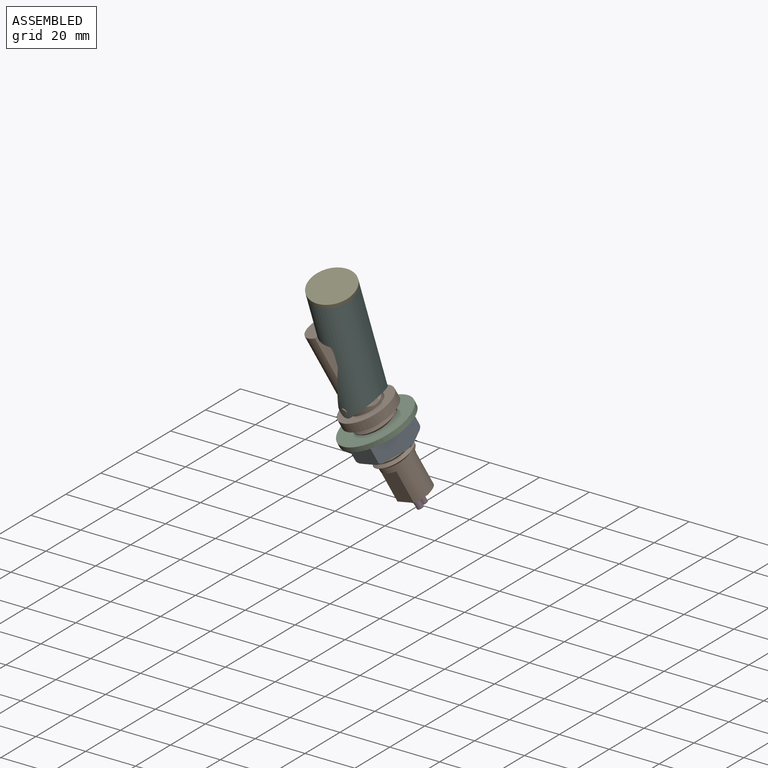
[diagram: assembled view]
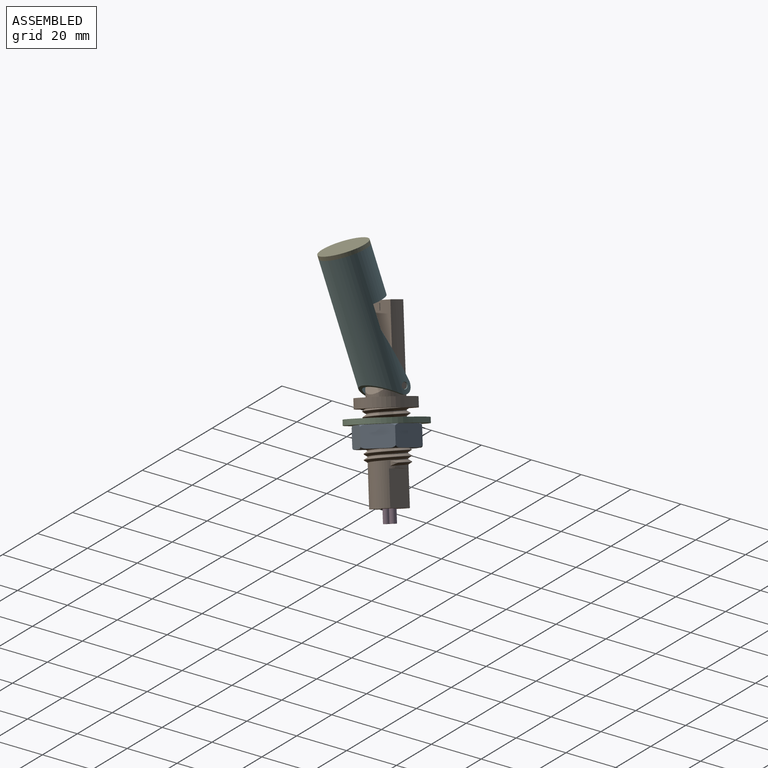
[diagram: assembled view, second angle]
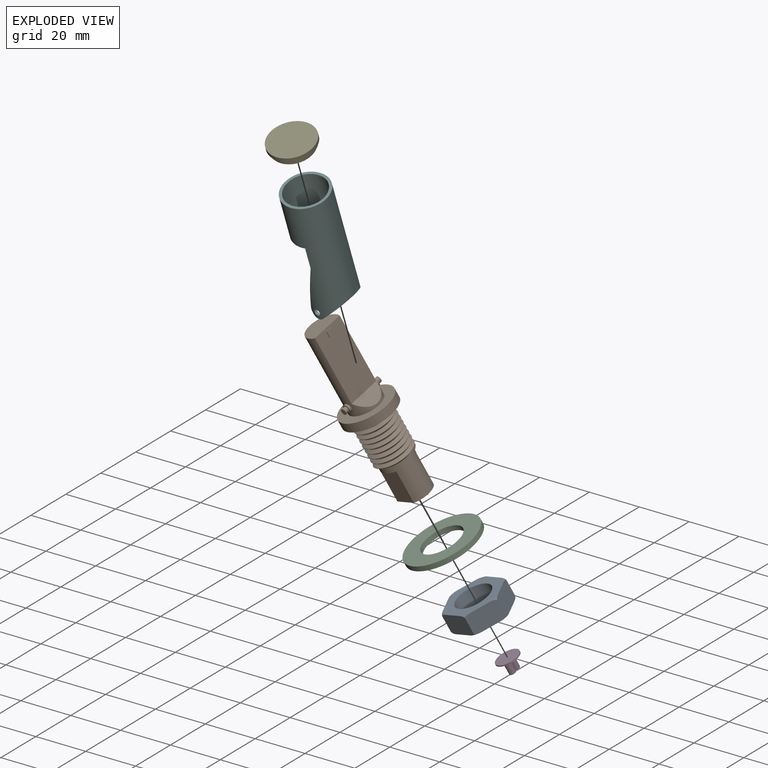
[diagram: exploded view]
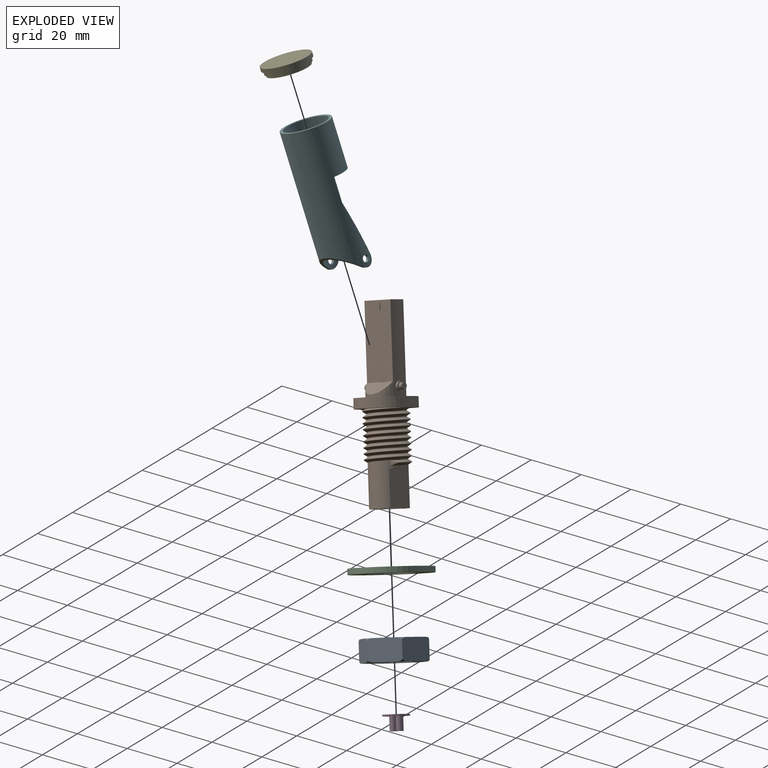
[diagram: exploded view, second angle]
ASSEMBLY  parts=6 mates=5
PART A: 21 faces, bbox 25.4x24x8.7 mm
  f0: cylinder r=7mm len=14mm, axis (0,0,1), area 351.9mm2, adj f1,f2
  f1: plane 22.25x21mm, normal (0,0,-1), area 216.4mm2, adj f0,f3,f4,f5,f6,f7,f8,f15
  f2: plane 22.25x21mm, normal (0,0,1), area 216.4mm2, adj f0,f3,f4,f5,f6,f7,f8,f9
  f3: plane 11.19x8.69mm, normal (0.87,-0.5,0), area 95.1mm2, adj f1,f2,f4,f8,f9,f14,f16,f20
  f4: plane 11.19x8.69mm, normal (0.87,0.5,0), area 95mm2, adj f1,f2,f3,f5,f13,f14,f19,f20
  f5: plane 12.82x8.69mm, normal (0,1,0), area 95.2mm2, adj f1,f2,f4,f6,f12,f13,f18,f19
  f6: plane 11.19x8.69mm, normal (-0.87,0.5,0), area 95.1mm2, adj f1,f2,f5,f7,f11,f12,f17,f18
  f7: plane 11.19x8.69mm, normal (-0.87,-0.5,0), area 95.1mm2, adj f1,f2,f6,f8,f10,f11,f15,f17
  f8: plane 12.82x8.69mm, normal (0,-1,0), area 95.3mm2, adj f1,f2,f3,f7,f9,f10,f15,f16
  f9: torus R=11.12mm, axis (0,0,1), area 3.4mm2, adj f2,f3,f8
  f10: torus R=11.12mm, axis (0,0,1), area 3.4mm2, adj f2,f7,f8
  f11: torus R=11.12mm, axis (0,0,1), area 3.4mm2, adj f2,f6,f7
  f12: torus R=11.12mm, axis (0,0,1), area 3.4mm2, adj f2,f5,f6
  f13: torus R=11.12mm, axis (0,0,1), area 3.4mm2, adj f2,f4,f5
  f14: torus R=11.12mm, axis (0,0,1), area 3.4mm2, adj f2,f3,f4
  f15: torus R=11.12mm, axis (0,0,-1), area 3.4mm2, adj f1,f7,f8
  f16: torus R=11.12mm, axis (0,0,-1), area 3.4mm2, adj f1,f3,f8
  f17: torus R=11.12mm, axis (0,0,-1), area 3.4mm2, adj f1,f6,f7
  f18: torus R=11.12mm, axis (0,0,-1), area 3.4mm2, adj f1,f5,f6
  f19: torus R=11.12mm, axis (0,0,-1), area 3.4mm2, adj f1,f4,f5
  f20: torus R=11.12mm, axis (0,0,-1), area 3.4mm2, adj f1,f3,f4
PART B: 47 faces, bbox 22.2x22.2x69.6 mm
  f0: cylinder r=1.15mm len=2.3mm, axis (1,0,0), area 10.8mm2, adj f36,f37
  f1: cylinder r=1.62mm len=3.24mm, axis (1,0,0), area 7.9mm2, adj f16,f36
  f2: cylinder r=1.15mm len=2.3mm, axis (-1,0,0), area 10.8mm2, adj f19,f35
  f3: cylinder r=1.62mm len=3.24mm, axis (-1,0,0), area 7.9mm2, adj f16,f19
  f4: cylinder r=4.6mm len=61.7mm, axis (0,0,1), area 1443.7mm2, adj f17,f24,f25,f26
  f5: cylinder r=6.7mm len=17.05mm, axis (0,0,-1), area 383.3mm2, adj f6,f17,f28,f29,f30,f31,f32,f33
  f6: cylinder r=6.7mm len=13.4mm, axis (0,0,-1), area 10.2mm2, adj f5,f7,f28,f29
  f7: cylinder r=6.7mm len=13.4mm, axis (0,0,-1), area 10.2mm2, adj f6,f8,f28,f29
  f8: cylinder r=6.7mm len=13.4mm, axis (0,0,-1), area 10.2mm2, adj f7,f9,f28,f29
  f9: cylinder r=6.7mm len=13.4mm, axis (0,0,-1), area 10.2mm2, adj f8,f10,f28,f29
  f10: cylinder r=6.7mm len=13.4mm, axis (0,0,-1), area 10.2mm2, adj f9,f11,f28,f29
  f11: cylinder r=6.7mm len=13.4mm, axis (0,0,-1), area 10.2mm2, adj f10,f12,f28,f29
  f12: cylinder r=6.7mm len=13.4mm, axis (0,0,-1), area 10.2mm2, adj f11,f13,f28,f29
  f13: cylinder r=6.7mm len=13.4mm, axis (0,0,-1), area 10.2mm2, adj f12,f14,f20,f28,f29
  f14: cylinder r=6.7mm len=3.77mm, axis (0,0,-1), area 0.4mm2, adj f13,f20,f29
  f15: cylinder r=10.75mm len=21.5mm, axis (0,0,1), area 243.2mm2, adj f20,f21
  f16: cylinder r=6.72mm len=32mm, axis (0,0,1), area 857.1mm2, adj f1,f3,f18,f21,f22,f23
  f17: plane 13.4x10.14mm, normal (0,0,-1), area 53.1mm2, adj f4,f5,f32,f34,f43,f44,f45
  f18: plane 27x12.55mm, normal (0,-1,0), area 332.5mm2, adj f16,f22,f23,f38,f39,f40,f41
  f19: plane 3.24x3.24mm, normal (-1,0,0), area 4.1mm2, adj f2,f3
  f20: plane 22.24x22.24mm, normal (0,0,-1), area 195.2mm2, adj f13,f14,f15,f27,f28,f29
  f21: plane 21.5x21.5mm, normal (0,0,1), area 221mm2, adj f15,f16
  f22: plane 13.45x9.15mm, normal (0,0,1), area 102.9mm2, adj f16,f18
  f23: plane 12.55x4.3mm, normal (0,-0.68,0.73), area 53.5mm2, adj f16,f18
  f24: plane 27.61x8.73mm, normal (0,1,0), area 241.1mm2, adj f4,f25,f26
  f25: plane 9.2x6.05mm, normal (0,0,-1), area 46.3mm2, adj f4,f24
  f26: plane 8.73x3.15mm, normal (0,0.68,-0.73), area 27.5mm2, adj f4,f24
  f27: bspline ~18.61x16.75mm, area 107.2mm2, adj f20,f28,f29,f30
  f28: bspline ~19.98x16.62mm, area 613.7mm2, adj f5,f6,f7,f8,f9,f10,f11,f12
  f29: bspline ~18.98x16.62mm, area 582.5mm2, adj f5,f6,f7,f8,f9,f10,f11,f12
  f30: extruded ~1.99x1.76mm, area 2.3mm2, adj f5,f27,f28,f29
  f31: plane 8.76x1.63mm, normal (0,0,-1), area 9.8mm2, adj f5,f32
  f32: plane 13x8.76mm, normal (1,0,0), area 113.8mm2, adj f5,f17,f31
  f33: plane 8.76x1.63mm, normal (0,0,-1), area 9.8mm2, adj f5,f34
  f34: plane 13x8.76mm, normal (-1,0,0), area 113.8mm2, adj f5,f17,f33
  f35: plane 2.3x2.3mm, normal (-1,0,0), area 4.2mm2, adj f2
  f36: plane 3.24x3.24mm, normal (1,0,0), area 4.1mm2, adj f0,f1
  f37: plane 2.3x2.3mm, normal (1,0,0), area 4.2mm2, adj f0
  f38: plane 2.5x0.3mm, normal (-1,0,0), area 0.8mm2, adj f18,f39,f41,f42
  f39: plane 2.5x0.3mm, normal (0,0,-1), area 0.8mm2, adj f18,f38,f40,f42
  f40: plane 2.5x0.3mm, normal (1,0,0), area 0.8mm2, adj f18,f39,f41,f42
  f41: plane 2.5x0.3mm, normal (0,0,1), area 0.8mm2, adj f18,f38,f40,f42
  f42: plane 2.5x2.5mm, normal (0,-1,0), area 6.3mm2, adj f38,f39,f40,f41
  f43: plane 1.69x1.14mm, normal (0.83,-0.56,0), area 0.6mm2, adj f17,f44,f45,f46
  f44: plane 1.69x1.14mm, normal (-0.83,-0.56,0), area 0.6mm2, adj f17,f43,f45,f46
  f45: plane 2.28x0.3mm, normal (0,1,0), area 0.7mm2, adj f17,f43,f44,f46
  f46: plane 2.28x1.69mm, normal (0,0,-1), area 1.9mm2, adj f43,f44,f45
PART C: 4 faces, bbox 29x29x2 mm
  f0: cylinder r=8mm len=16mm, axis (0,0,-1), area 100.5mm2, adj f2,f3
  f1: cylinder r=14.5mm len=29mm, axis (0,0,-1), area 182.2mm2, adj f2,f3
  f2: plane 29x29mm, normal (0,0,-1), area 459.5mm2, adj f0,f1
  f3: plane 29x29mm, normal (0,0,1), area 459.5mm2, adj f0,f1
PART D: 7 faces, bbox 9.2x9.2x5.5 mm
  f0: cylinder r=1.25mm len=5mm, axis (0,0,-1), area 39.3mm2, adj f3,f6
  f1: cylinder r=1.25mm len=5mm, axis (0,0,-1), area 39.3mm2, adj f3,f5
  f2: cylinder r=4.6mm len=9.2mm, axis (0,0,-1), area 14.5mm2, adj f3,f4
  f3: plane 9.2x9.2mm, normal (0,0,-1), area 56.7mm2, adj f0,f1,f2
  f4: plane 9.2x9.2mm, normal (0,0,1), area 66.5mm2, adj f2
  f5: plane 2.5x2.5mm, normal (0,0,-1), area 4.9mm2, adj f1
  f6: plane 2.5x2.5mm, normal (0,0,-1), area 4.9mm2, adj f0
PART E: 25 faces, bbox 18x17.4x9.4 mm
  f0: cylinder r=7.85mm len=15.7mm, axis (0,0.35,-0.94), area 39.5mm2, adj f10,f11
  f1: cylinder r=8.33mm len=16.65mm, axis (0,0.35,-0.94), area 73.2mm2, adj f8,f10
  f2: cylinder r=9mm len=18mm, axis (0,-0.35,0.94), area 84.8mm2, adj f8,f9
  f3: cylinder r=7.3mm len=14.6mm, axis (0,0.35,-0.94), area 99mm2, adj f4,f5,f6,f7,f11,f13,f14,f16
  f4: plane 6.81x6.38mm, normal (0,0.35,-0.94), area 30.2mm2, adj f3,f14,f15,f16
  f5: plane 6.81x6.38mm, normal (0,0.35,-0.94), area 30.2mm2, adj f3,f17,f18,f19
  f6: plane 6.81x6.38mm, normal (0,0.35,-0.94), area 30.2mm2, adj f3,f20,f21,f22
  f7: plane 6.81x6.38mm, normal (0,0.35,-0.94), area 30.2mm2, adj f3,f12,f13,f23
  f8: plane 18x16.86mm, normal (0,0.35,-0.94), area 36.7mm2, adj f1,f2
  f9: plane 18x16.86mm, normal (0,-0.35,0.94), area 254.5mm2, adj f2
  f10: plane 16.65x15.6mm, normal (0,0.35,-0.94), area 24.1mm2, adj f0,f1
  f11: plane 15.7x14.71mm, normal (0,0.35,-0.94), area 26.2mm2, adj f0,f3
  f12: cylinder r=3.12mm len=2.62mm, axis (0,0.35,-0.94), area 2mm2, adj f7,f13,f23,f24
  f13: plane 4.11x1.94mm, normal (-1,0,0), area 2.1mm2, adj f3,f7,f12,f24
  f14: plane 4.11x1.94mm, normal (1,0,0), area 2.1mm2, adj f3,f4,f15,f24
  f15: cylinder r=3.12mm len=2.62mm, axis (0,0.35,-0.94), area 2mm2, adj f4,f14,f16,f24
  f16: plane 4.2x0.47mm, normal (0,0.94,0.35), area 2.1mm2, adj f3,f4,f15,f24
  f17: plane 4.2x0.47mm, normal (0,-0.94,-0.35), area 2.1mm2, adj f3,f5,f18,f24
  f18: cylinder r=3.12mm len=2.62mm, axis (0,0.35,-0.94), area 2mm2, adj f5,f17,f19,f24
  f19: plane 4.11x1.94mm, normal (1,0,0), area 2.1mm2, adj f3,f5,f18,f24
  f20: plane 4.11x1.94mm, normal (-1,0,0), area 2.1mm2, adj f3,f6,f21,f24
  f21: cylinder r=3.12mm len=2.62mm, axis (0,0.35,-0.94), area 2mm2, adj f6,f20,f22,f24
  f22: plane 4.2x0.47mm, normal (0,-0.94,-0.35), area 2.1mm2, adj f3,f6,f21,f24
  f23: plane 4.2x0.47mm, normal (0,0.94,0.35), area 2.1mm2, adj f3,f7,f12,f24
  f24: plane 14.6x13.68mm, normal (0,0.35,-0.94), area 46.6mm2, adj f3,f12,f13,f14,f15,f16,f17,f18
PART F: 37 faces, bbox 18.2x34.7x53.9 mm
  f0: cylinder r=2.97mm len=4.44mm, axis (1,0,0), area 7.9mm2, adj f2,f6,f32,f33
  f1: cylinder r=2.97mm len=4.44mm, axis (1,0,0), area 7.8mm2, adj f2,f3,f6,f32,f36
  f2: cylinder r=9mm len=53.71mm, axis (0,-0.35,0.94), area 1772.3mm2, adj f0,f1,f3,f4,f5,f30,f32,f33
  f3: cylinder r=9mm len=14.41mm, axis (0,-0.35,0.94), area 21.9mm2, adj f1,f2,f5,f36
  f4: cylinder r=1.28mm len=2.56mm, axis (1,0,0), area 8.9mm2, adj f2,f6
  f5: cylinder r=1.28mm len=2.56mm, axis (1,0,0), area 8.9mm2, adj f2,f3,f6
  f6: cylinder r=7.9mm len=25.91mm, axis (0,-0.35,0.94), area 194.5mm2, adj f0,f1,f4,f5,f31,f32,f33,f35
  f7: cylinder r=2.67mm len=5.34mm, axis (0,-0.94,-0.35), area 3.4mm2, adj f14,f16,f26,f27
  f8: cylinder r=7.9mm len=21.45mm, axis (0,0.35,-0.94), area 843.8mm2, adj f24,f30
  f9: plane 16.68x6.59mm, normal (0.76,0.61,0.23), area 7.6mm2, adj f10,f13,f14,f29
  f10: plane 16.67x6.59mm, normal (-0.76,0.61,0.23), area 7.6mm2, adj f9,f13,f14,f29
  f11: plane 16.79x6.34mm, normal (-0.76,-0.61,-0.23), area 7.6mm2, adj f12,f13,f15,f28
  f12: plane 16.79x6.33mm, normal (0.76,-0.61,-0.23), area 7.6mm2, adj f11,f13,f15,f28
  f13: plane 3.44x3.23mm, normal (0,-0.35,0.94), area 11.7mm2, adj f9,f10,f11,f12,f14,f15,f17,f20
  f14: plane 21.45x8.01mm, normal (0,0.94,0.35), area 75.4mm2, adj f7,f9,f10,f13,f17,f18,f19,f20
  f15: plane 21.45x8.01mm, normal (0,-0.94,-0.35), area 75.4mm2, adj f11,f12,f13,f17,f18,f19,f20,f25
  f16: cylinder r=7.88mm len=25.44mm, axis (0,0.35,-0.94), area 332mm2, adj f7,f21,f22,f23,f24,f26,f27
  f17: plane 17.79x9.42mm, normal (1,0,0), area 61.1mm2, adj f13,f14,f15,f18
  f18: plane 3.23x1.21mm, normal (0,-0.35,0.94), area 3.3mm2, adj f14,f15,f17,f26
  f19: plane 3.23x1.21mm, normal (0,-0.35,0.94), area 3.3mm2, adj f14,f15,f20,f27
  f20: plane 17.79x9.42mm, normal (-1,0,0), area 61.1mm2, adj f13,f14,f15,f19
  f21: plane 4.42x3.72mm, normal (0,-0.35,0.94), area 11.1mm2, adj f16,f23,f27
  f22: plane 4.42x3.72mm, normal (0,-0.35,0.94), area 11.1mm2, adj f16,f23,f26
  f23: plane 23.89x14.18mm, normal (0,-0.94,-0.35), area 242.3mm2, adj f16,f21,f22,f24,f25,f26,f27
  f24: plane 15.8x14.8mm, normal (0,-0.35,0.94), area 151mm2, adj f8,f16,f23
  f25: cylinder r=2.67mm len=5.34mm, axis (0,-0.94,-0.35), area 2.9mm2, adj f15,f23,f26,f27
  f26: plane 20.34x10.79mm, normal (-1,0,0), area 71.6mm2, adj f7,f14,f15,f16,f18,f22,f23,f25
  f27: plane 20.34x10.79mm, normal (1,0,0), area 71.6mm2, adj f7,f14,f15,f16,f19,f21,f23,f25
  f28: extruded ~1.06x0.57mm, area 0.3mm2, adj f11,f12,f15
  f29: extruded ~0.83x0.66mm, area 0.3mm2, adj f9,f10,f14
  f30: plane 18x16.86mm, normal (0,-0.35,0.94), area 58.4mm2, adj f2,f8
  f31: plane 14.99x5.06mm, normal (0,0.35,-0.94), area 59.2mm2, adj f6,f35
  f32: plane 17.67x9.03mm, normal (0,-0.35,-0.94), area 33.6mm2, adj f0,f1,f2,f6
  f33: plane 17x12.11mm, normal (0,0.81,0.58), area 23.4mm2, adj f0,f2,f6,f35
  f34: plane 18x10.77mm, normal (0,0.35,-0.94), area 171.6mm2, adj f2,f35
  f35: plane 23.66x17.29mm, normal (0,0.94,0.35), area 399.2mm2, adj f2,f6,f31,f33,f34,f36
  f36: plane 17.15x12.26mm, normal (0,0.81,0.58), area 23.4mm2, adj f1,f2,f3,f6,f35
PLACE A rot(axis=(0.65,-0.65,-0.4),28.9deg) t=(-55.09,1.93,-86.03)mm
PLACE B rot(axis=(0,-0.35,0.94),82deg) t=(-28.17,97.03,-57.07)mm
PLACE C rot(axis=(0.65,-0.65,-0.4),28.9deg) t=(-55.09,1.93,-86.03)mm
PLACE D rot(axis=(0.63,-0.78,0),26.5deg) t=(-40.45,12.01,-88.59)mm
PLACE E t=(-30.54,20.32,-85.69)mm
PLACE F rot(axis=(0,-0.35,0.94),82deg) t=(-28.13,97.29,-56.97)mm
MATE fastened A.f15 <-> C.f0  axis (-0.35,-0.28,0.89) through (-72.34,79.5,-125.38)mm
MATE revolute D.f2 <-> B.f5  axis (0.35,0.28,-0.89) through (-62.75,87.31,-150.17)mm
MATE fastened C.f0 <-> B.f5  axis (-0.35,-0.28,0.89) through (-73.03,78.94,-123.59)mm
MATE revolute E.f0 <-> F.f2  axis (0,0.35,-0.94) through (-76.61,59.62,-69.55)mm
MATE revolute F.f0 <-> B.f0  axis (0.14,0.93,0.35) through (-77.68,69.05,-116.88)mm
